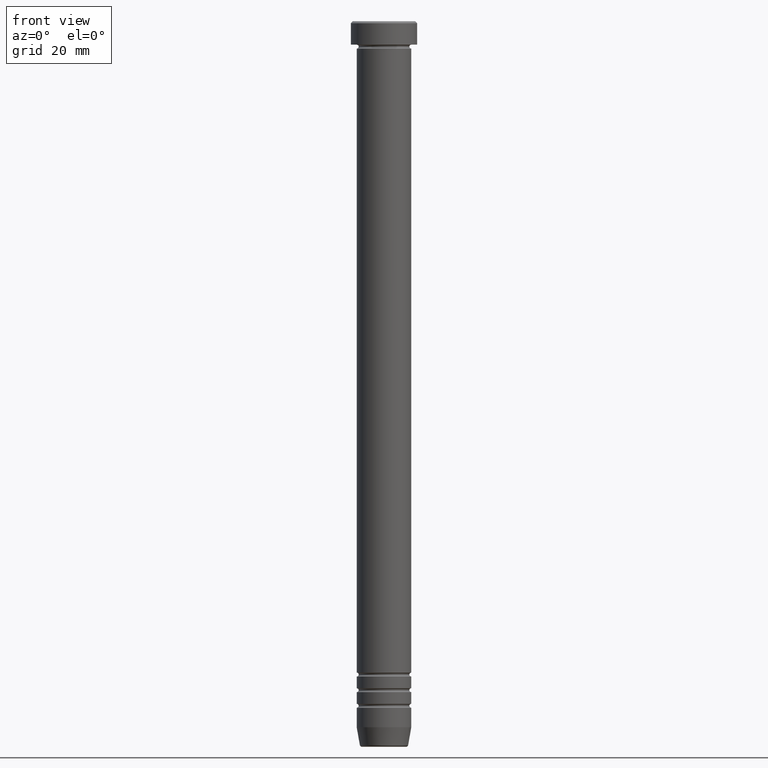
[diagram: clean part render]
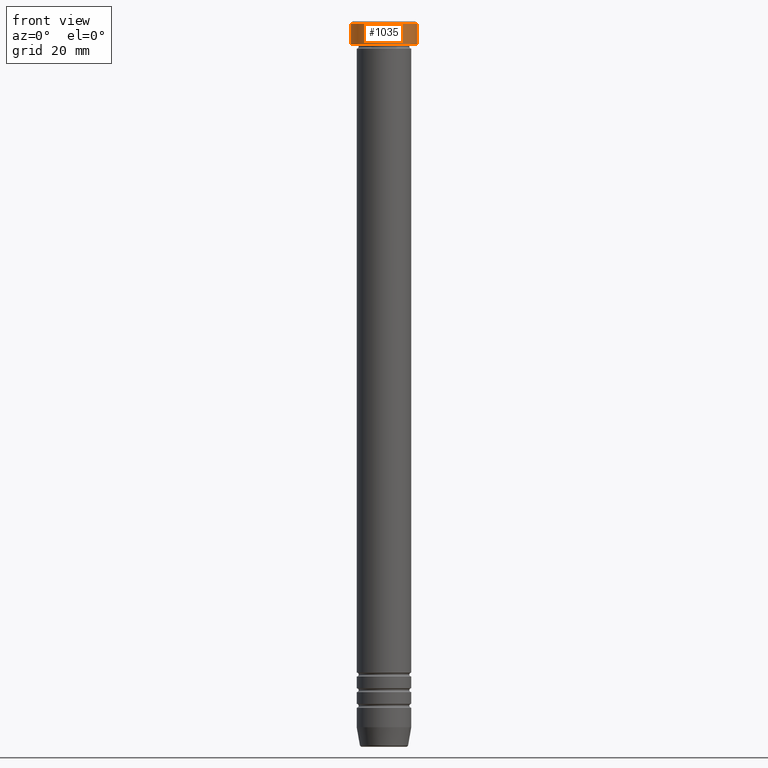
[diagram: same view with one face highlighted and labeled with its STEP entity id]
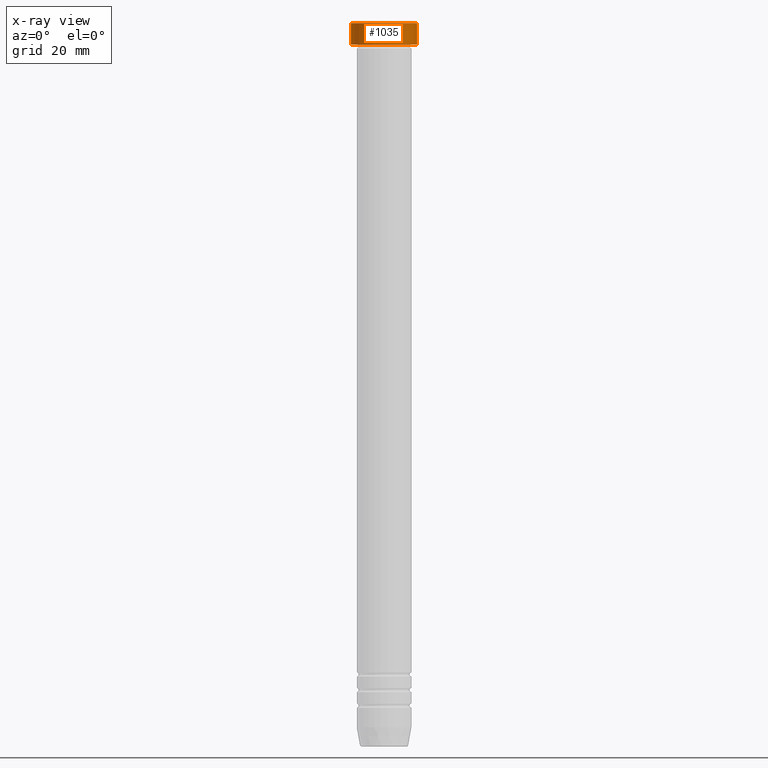
[diagram: x-ray of the same camera — body ghosted, the highlighted face saturated]
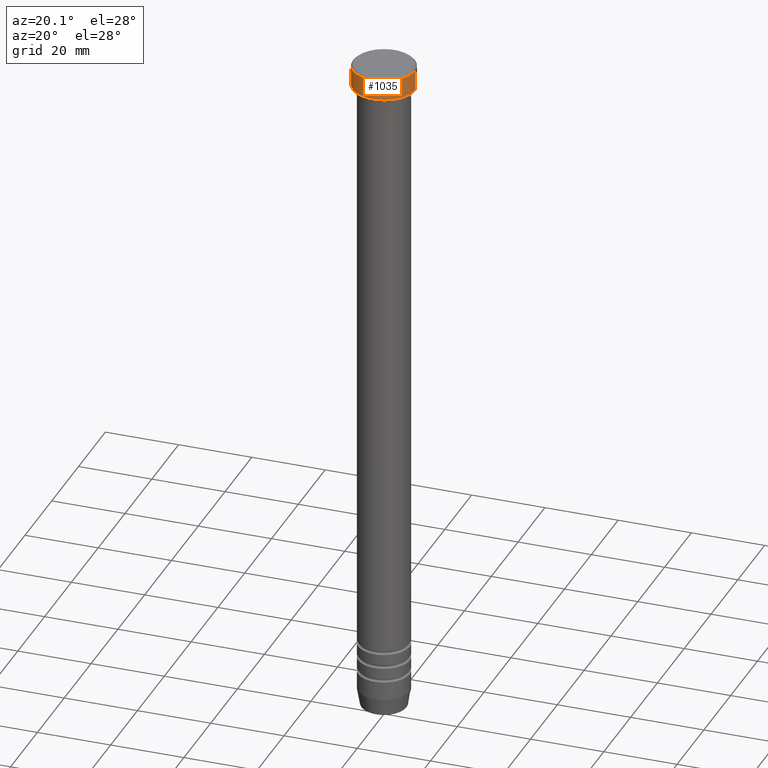
[diagram: same view with one face highlighted and labeled with its STEP entity id]
A machine part, front view. The second image highlights one B-rep face of the part: STEP entity #1035.
The next image is the same camera in x-ray: the body ghosted, the highlighted face saturated — about 0% of this face is hidden behind the body in this view.
A second angle (auxiliary view) of the same face is appended — the face is thin or edge-on in the first view.
In plain terms, the highlighted cylindrical surface (edge-blend (fillet) strip) has radius 8.5 mm, axis along (-0, -0, 1).
Its self-contained STEP definition (entity closure, byte-faithful):
#3 = CARTESIAN_POINT ( 'NONE',  ( 8.500000000000000000, 0.000000000000000000, -6.000000000000000000 ) ) ;
#19 = CARTESIAN_POINT ( 'NONE',  ( -8.500000000000000000, 1.040949779275250140E-15, 0.000000000000000000 ) ) ;
#72 = VERTEX_POINT ( 'NONE', #3 ) ;
#74 = VERTEX_POINT ( 'NONE', #663 ) ;
#78 = DIRECTION ( 'NONE',  ( -0.000000000000000000, -0.000000000000000000, 1.000000000000000000 ) ) ;
#95 = DIRECTION ( 'NONE',  ( 1.000000000000000000, 0.000000000000000000, 0.000000000000000000 ) ) ;
#125 = VECTOR ( 'NONE', #78, 1000.000000000000000 ) ;
#185 = CYLINDRICAL_SURFACE ( 'NONE', #351, 8.500000000000000000 ) ;
#212 = CARTESIAN_POINT ( 'NONE',  ( 0.000000000000000000, 0.000000000000000000, 0.000000000000000000 ) ) ;
#244 = EDGE_CURVE ( 'NONE', #72, #946, #268, .T. ) ;
#258 = EDGE_CURVE ( 'NONE', #946, #74, #748, .T. ) ;
#268 = LINE ( 'NONE', #856, #125 ) ;
#271 = EDGE_CURVE ( 'NONE', #616, #72, #882, .T. ) ;
#281 = DIRECTION ( 'NONE',  ( -0.000000000000000000, -0.000000000000000000, 1.000000000000000000 ) ) ;
#324 = AXIS2_PLACEMENT_3D ( 'NONE', #554, #574, #489 ) ;
#328 = ORIENTED_EDGE ( 'NONE', *, *, #403, .F. ) ;
#351 = AXIS2_PLACEMENT_3D ( 'NONE', #212, #281, #95 ) ;
#403 = EDGE_CURVE ( 'NONE', #616, #74, #892, .T. ) ;
#418 = ORIENTED_EDGE ( 'NONE', *, *, #271, .T. ) ;
#425 = AXIS2_PLACEMENT_3D ( 'NONE', #610, #970, #863 ) ;
#452 = FACE_OUTER_BOUND ( 'NONE', #509, .T. ) ;
#489 = DIRECTION ( 'NONE',  ( 1.000000000000000000, 0.000000000000000000, 0.000000000000000000 ) ) ;
#497 = CARTESIAN_POINT ( 'NONE',  ( -8.500000000000000000, 1.040949779275250140E-15, -6.000000000000000000 ) ) ;
#509 = EDGE_LOOP ( 'NONE', ( #328, #418, #1065, #1021 ) ) ;
#554 = CARTESIAN_POINT ( 'NONE',  ( 0.000000000000000000, 0.000000000000000000, -6.000000000000000000 ) ) ;
#568 = VECTOR ( 'NONE', #731, 1000.000000000000000 ) ;
#574 = DIRECTION ( 'NONE',  ( -0.000000000000000000, -0.000000000000000000, 1.000000000000000000 ) ) ;
#610 = CARTESIAN_POINT ( 'NONE',  ( 0.000000000000000000, 0.000000000000000000, -0.4999999999999952260 ) ) ;
#616 = VERTEX_POINT ( 'NONE', #497 ) ;
#663 = CARTESIAN_POINT ( 'NONE',  ( -8.500000000000000000, 1.040949779275250140E-15, -0.4999999999999952260 ) ) ;
#731 = DIRECTION ( 'NONE',  ( -0.000000000000000000, -0.000000000000000000, 1.000000000000000000 ) ) ;
#748 = CIRCLE ( 'NONE', #425, 8.500000000000000000 ) ;
#754 = CARTESIAN_POINT ( 'NONE',  ( 8.500000000000000000, 0.000000000000000000, -0.4999999999999952260 ) ) ;
#856 = CARTESIAN_POINT ( 'NONE',  ( 8.500000000000000000, 0.000000000000000000, 0.000000000000000000 ) ) ;
#863 = DIRECTION ( 'NONE',  ( 1.000000000000000000, 0.000000000000000000, 0.000000000000000000 ) ) ;
#882 = CIRCLE ( 'NONE', #324, 8.500000000000000000 ) ;
#892 = LINE ( 'NONE', #19, #568 ) ;
#946 = VERTEX_POINT ( 'NONE', #754 ) ;
#970 = DIRECTION ( 'NONE',  ( 0.000000000000000000, 0.000000000000000000, -1.000000000000000000 ) ) ;
#1021 = ORIENTED_EDGE ( 'NONE', *, *, #258, .T. ) ;
#1035 = ADVANCED_FACE ( 'NONE', ( #452 ), #185, .T. ) ;
#1065 = ORIENTED_EDGE ( 'NONE', *, *, #244, .T. ) ;